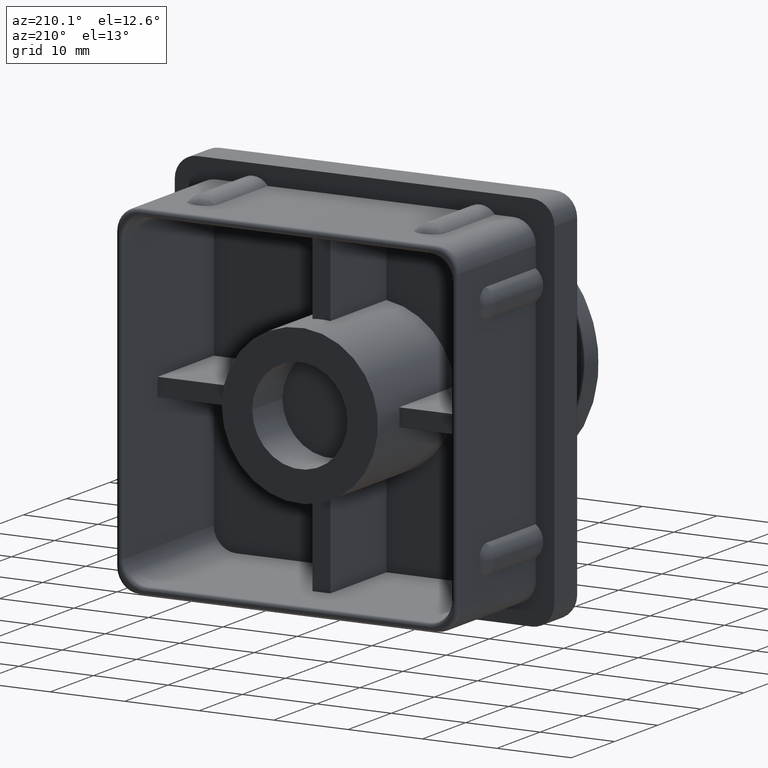
[diagram: clean part render]
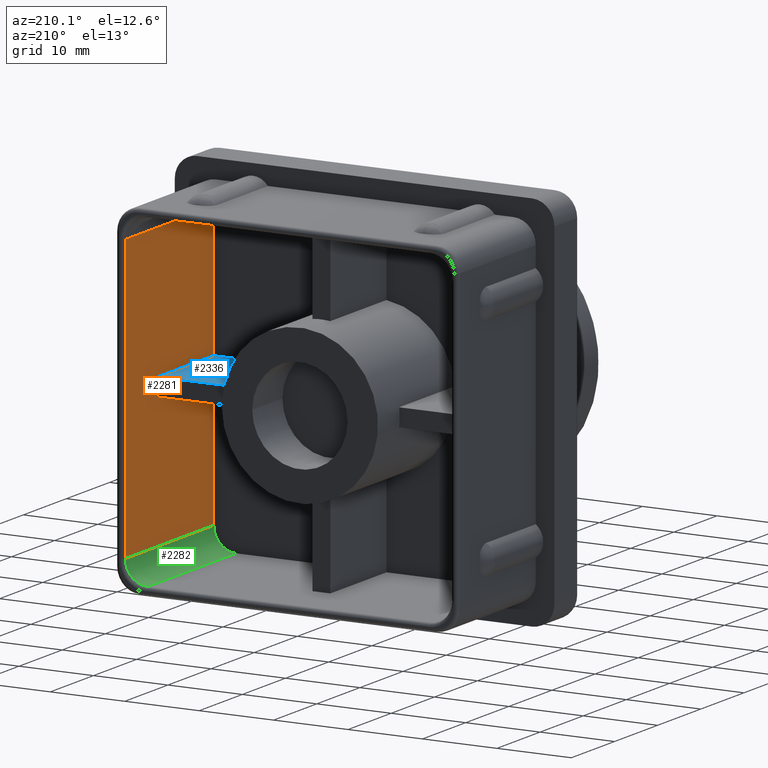
[diagram: same view with three faces highlighted in distinct colors, each labeled with its STEP entity id]
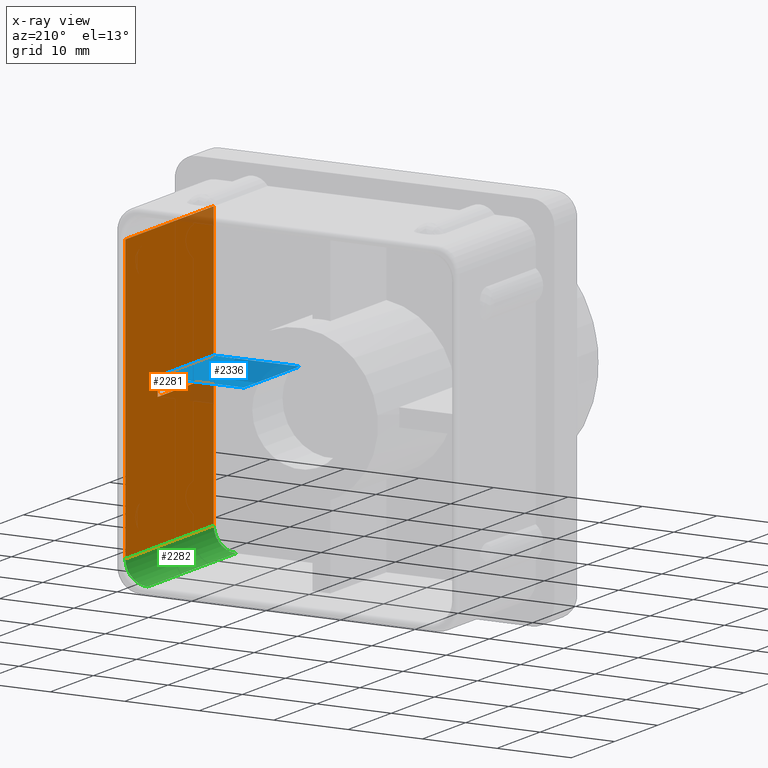
[diagram: x-ray of the same camera — body ghosted, the three highlighted faces saturated]
A machine part, auxiliary view with three faces highlighted in distinct colors.
The next image is the same camera in x-ray (body ghosted, the three faces saturated) — at least one of them is partly hidden behind the body in this view.
Their STEP definitions:

[orange] entity #2281 — the highlighted planar face has unit normal (1, 0, 0).
#226=PLANE('',#2484);
#329=FACE_OUTER_BOUND('',#482,.T.);
#482=EDGE_LOOP('',(#1805,#1806,#1807,#1808,#1809,#1810,#1811,#1812));
#643=LINE('',#5090,#815);
#644=LINE('',#5092,#816);
#645=LINE('',#5094,#817);
#646=LINE('',#5096,#818);
#647=LINE('',#5098,#819);
#648=LINE('',#5100,#820);
#649=LINE('',#5102,#821);
#650=LINE('',#5103,#822);
#815=VECTOR('',#2960,38.);
#816=VECTOR('',#2961,20.5);
#817=VECTOR('',#2962,17.8);
#818=VECTOR('',#2963,13.);
#819=VECTOR('',#2964,2.4);
#820=VECTOR('',#2965,13.);
#821=VECTOR('',#2966,17.8);
#822=VECTOR('',#2967,20.5);
#1078=VERTEX_POINT('',#5055);
#1083=VERTEX_POINT('',#5066);
#1091=VERTEX_POINT('',#5091);
#1092=VERTEX_POINT('',#5093);
#1093=VERTEX_POINT('',#5095);
#1094=VERTEX_POINT('',#5097);
#1095=VERTEX_POINT('',#5099);
#1096=VERTEX_POINT('',#5101);
#1362=EDGE_CURVE('',#1083,#1078,#643,.T.);
#1363=EDGE_CURVE('',#1091,#1083,#644,.T.);
#1364=EDGE_CURVE('',#1091,#1092,#645,.T.);
#1365=EDGE_CURVE('',#1092,#1093,#646,.T.);
#1366=EDGE_CURVE('',#1093,#1094,#647,.T.);
#1367=EDGE_CURVE('',#1094,#1095,#648,.T.);
#1368=EDGE_CURVE('',#1095,#1096,#649,.T.);
#1369=EDGE_CURVE('',#1078,#1096,#650,.T.);
#1805=ORIENTED_EDGE('',*,*,#1362,.F.);
#1806=ORIENTED_EDGE('',*,*,#1363,.F.);
#1807=ORIENTED_EDGE('',*,*,#1364,.T.);
#1808=ORIENTED_EDGE('',*,*,#1365,.T.);
#1809=ORIENTED_EDGE('',*,*,#1366,.T.);
#1810=ORIENTED_EDGE('',*,*,#1367,.T.);
#1811=ORIENTED_EDGE('',*,*,#1368,.T.);
#1812=ORIENTED_EDGE('',*,*,#1369,.F.);
#2281=ADVANCED_FACE('',(#329),#226,.F.);
#2484=AXIS2_PLACEMENT_3D('',#5089,#2958,#2959);
#2958=DIRECTION('center_axis',(1.,0.,0.));
#2959=DIRECTION('ref_axis',(0.,0.,1.));
#2960=DIRECTION('',(0.,0.,1.));
#2961=DIRECTION('',(0.,1.,0.));
#2962=DIRECTION('',(0.,0.,1.));
#2963=DIRECTION('',(0.,1.,0.));
#2964=DIRECTION('',(0.,0.,1.));
#2965=DIRECTION('',(0.,-1.,0.));
#2966=DIRECTION('',(0.,0.,1.));
#2967=DIRECTION('',(0.,-1.,0.));
#5055=CARTESIAN_POINT('',(22.,17.5,19.));
#5066=CARTESIAN_POINT('',(22.,17.5,-19.));
#5089=CARTESIAN_POINT('Origin',(22.,18.,-22.));
#5090=CARTESIAN_POINT('',(22.,17.5,-11.));
#5091=CARTESIAN_POINT('',(22.,-3.,-19.));
#5092=CARTESIAN_POINT('',(22.,18.,-19.));
#5093=CARTESIAN_POINT('',(22.,-3.,-1.2));
#5094=CARTESIAN_POINT('',(22.,-3.,-22.));
#5095=CARTESIAN_POINT('',(22.,10.,-1.2));
#5096=CARTESIAN_POINT('',(22.,7.5,-1.2));
#5097=CARTESIAN_POINT('',(22.,10.,1.2));
#5098=CARTESIAN_POINT('',(22.,10.,-11.));
#5099=CARTESIAN_POINT('',(22.,-3.,1.2));
#5100=CARTESIAN_POINT('',(22.,7.5,1.2));
#5101=CARTESIAN_POINT('',(22.,-3.,19.));
#5102=CARTESIAN_POINT('',(22.,-3.,-22.));
#5103=CARTESIAN_POINT('',(22.,18.,19.));

[blue] entity #2336 — the highlighted planar face has unit normal (0, 0, 1).
#252=PLANE('',#2582);
#384=FACE_OUTER_BOUND('',#539,.T.);
#539=EDGE_LOOP('',(#2127,#2128,#2129,#2130));
#648=LINE('',#5100,#820);
#687=LINE('',#5240,#859);
#725=LINE('',#5334,#897);
#728=LINE('',#5341,#900);
#820=VECTOR('',#2965,13.);
#859=VECTOR('',#3132,11.5687968095718);
#897=VECTOR('',#3232,13.);
#900=VECTOR('',#3241,11.5687968095718);
#1094=VERTEX_POINT('',#5097);
#1095=VERTEX_POINT('',#5099);
#1132=VERTEX_POINT('',#5239);
#1157=VERTEX_POINT('',#5333);
#1367=EDGE_CURVE('',#1094,#1095,#648,.T.);
#1439=EDGE_CURVE('',#1095,#1132,#687,.T.);
#1486=EDGE_CURVE('',#1132,#1157,#725,.T.);
#1490=EDGE_CURVE('',#1157,#1094,#728,.T.);
#2127=ORIENTED_EDGE('',*,*,#1486,.F.);
#2128=ORIENTED_EDGE('',*,*,#1439,.F.);
#2129=ORIENTED_EDGE('',*,*,#1367,.F.);
#2130=ORIENTED_EDGE('',*,*,#1490,.F.);
#2336=ADVANCED_FACE('',(#384),#252,.T.);
#2582=AXIS2_PLACEMENT_3D('',#5340,#3239,#3240);
#2965=DIRECTION('',(0.,-1.,0.));
#3132=DIRECTION('',(-1.,0.,1.27213054904966E-16));
#3232=DIRECTION('',(0.,1.,0.));
#3239=DIRECTION('center_axis',(1.27213054904966E-16,0.,1.));
#3240=DIRECTION('ref_axis',(1.,0.,-1.33226762955019E-16));
#3241=DIRECTION('',(1.,0.,-1.27213054904966E-16));
#5097=CARTESIAN_POINT('',(22.,10.,1.2));
#5099=CARTESIAN_POINT('',(22.,-3.,1.2));
#5100=CARTESIAN_POINT('',(22.,7.5,1.2));
#5239=CARTESIAN_POINT('',(10.4312031904282,-3.,1.2));
#5240=CARTESIAN_POINT('',(5.,-3.,1.2));
#5333=CARTESIAN_POINT('',(10.4312031904282,10.,1.2));
#5334=CARTESIAN_POINT('',(10.4312031904282,15.,1.2));
#5340=CARTESIAN_POINT('Origin',(10.,-3.,1.2));
#5341=CARTESIAN_POINT('',(10.,10.,1.2));

[green] entity #2282 — the highlighted cylindrical surface (edge-blend (fillet) strip) has radius 3 mm, axis along (0, -1, 0).
#128=CIRCLE('',#2475,3.);
#134=CIRCLE('',#2486,3.);
#330=FACE_OUTER_BOUND('',#483,.T.);
#483=EDGE_LOOP('',(#1813,#1814,#1815,#1816));
#644=LINE('',#5092,#816);
#651=LINE('',#5106,#823);
#816=VECTOR('',#2961,20.5);
#823=VECTOR('',#2970,20.5);
#1082=VERTEX_POINT('',#5064);
#1083=VERTEX_POINT('',#5066);
#1091=VERTEX_POINT('',#5091);
#1097=VERTEX_POINT('',#5105);
#1350=EDGE_CURVE('',#1082,#1083,#128,.T.);
#1363=EDGE_CURVE('',#1091,#1083,#644,.T.);
#1370=EDGE_CURVE('',#1082,#1097,#651,.T.);
#1371=EDGE_CURVE('',#1091,#1097,#134,.T.);
#1813=ORIENTED_EDGE('',*,*,#1350,.F.);
#1814=ORIENTED_EDGE('',*,*,#1370,.T.);
#1815=ORIENTED_EDGE('',*,*,#1371,.F.);
#1816=ORIENTED_EDGE('',*,*,#1363,.T.);
#2187=CYLINDRICAL_SURFACE('',#2485,3.);
#2282=ADVANCED_FACE('',(#330),#2187,.F.);
#2475=AXIS2_PLACEMENT_3D('',#5067,#2934,#2935);
#2485=AXIS2_PLACEMENT_3D('',#5104,#2968,#2969);
#2486=AXIS2_PLACEMENT_3D('',#5107,#2971,#2972);
#2934=DIRECTION('center_axis',(0.,-1.,0.));
#2935=DIRECTION('ref_axis',(0.707106781186547,0.,-0.707106781186548));
#2961=DIRECTION('',(0.,1.,0.));
#2968=DIRECTION('center_axis',(0.,-1.,0.));
#2969=DIRECTION('ref_axis',(0.707106781186547,0.,-0.707106781186548));
#2970=DIRECTION('',(0.,-1.,0.));
#2971=DIRECTION('center_axis',(0.,1.,0.));
#2972=DIRECTION('ref_axis',(0.707106781186547,0.,-0.707106781186548));
#5064=CARTESIAN_POINT('',(19.,17.5,-22.));
#5066=CARTESIAN_POINT('',(22.,17.5,-19.));
#5067=CARTESIAN_POINT('Origin',(19.,17.5,-19.));
#5091=CARTESIAN_POINT('',(22.,-3.,-19.));
#5092=CARTESIAN_POINT('',(22.,18.,-19.));
#5104=CARTESIAN_POINT('Origin',(19.,18.,-19.));
#5105=CARTESIAN_POINT('',(19.,-3.,-22.));
#5106=CARTESIAN_POINT('',(19.,18.,-22.));
#5107=CARTESIAN_POINT('Origin',(19.,-3.,-19.));